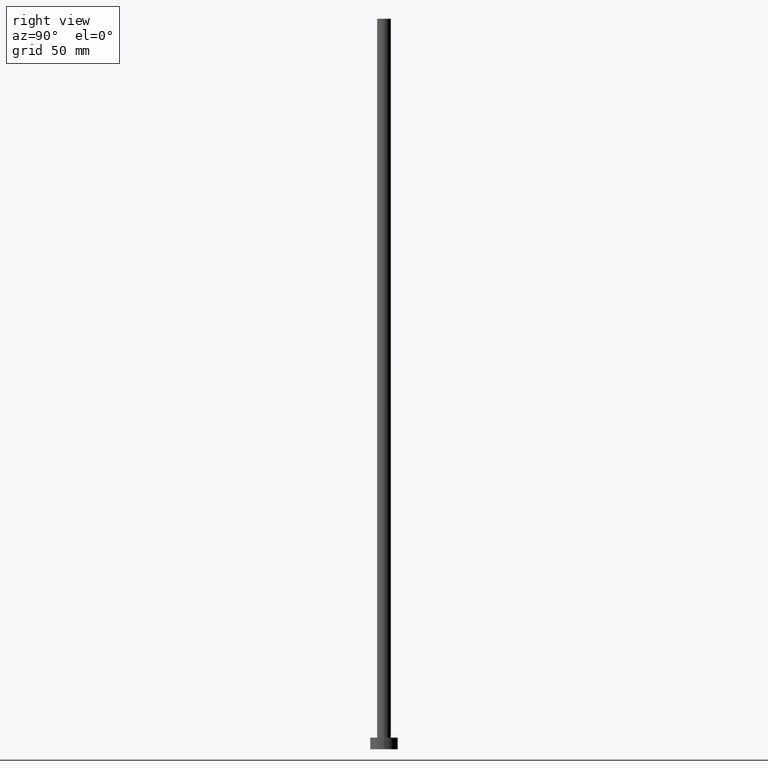
[diagram: clean part render]
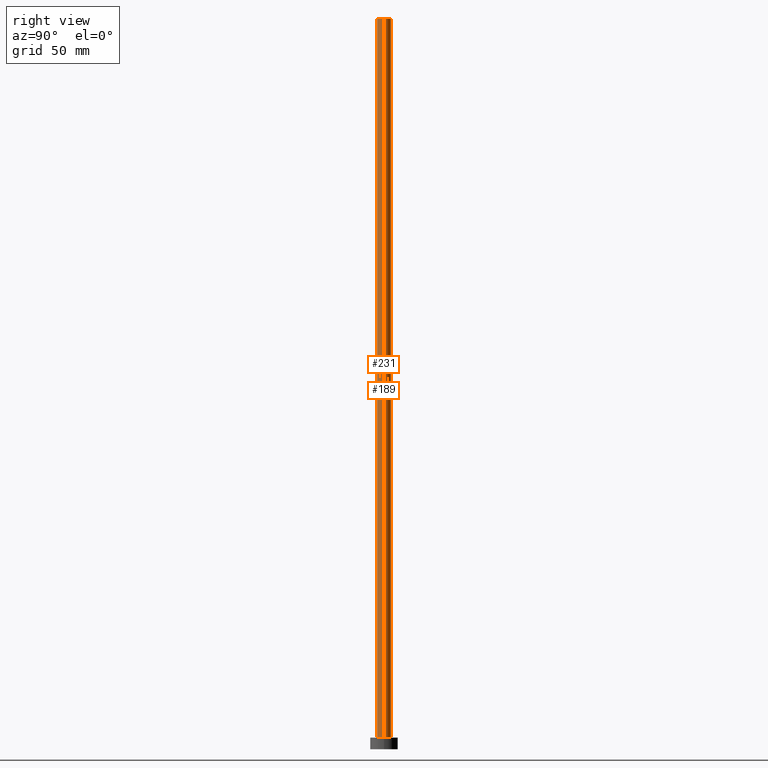
[diagram: same view with one multi-face feature highlighted, each face labeled with its STEP entity id]
A machine part, right view. The highlighted faces form ONE feature: a constant-radius fillet chain: 2 tangent blend faces with common blend radius 3 mm. The faces share edges in the B-rep.
Their STEP definitions:
[1] entity #231 (Cylinder):
#27 = VECTOR ( 'NONE', #178, 1000.000000000000000 ) ;
#28 = EDGE_CURVE ( 'NONE', #84, #98, #78, .T. ) ;
#39 = CARTESIAN_POINT ( 'NONE',  ( 3.000000000000000444, 3.673940397442060361E-16, 5.000000000000000000 ) ) ;
#41 = DIRECTION ( 'NONE',  ( -0.000000000000000000, -0.000000000000000000, -1.000000000000000000 ) ) ;
#44 = FACE_OUTER_BOUND ( 'NONE', #140, .T. ) ;
#47 = DIRECTION ( 'NONE',  ( 1.000000000000000000, 0.000000000000000000, 0.000000000000000000 ) ) ;
#48 = EDGE_CURVE ( 'NONE', #137, #98, #206, .T. ) ;
#56 = LINE ( 'NONE', #62, #27 ) ;
#57 = DIRECTION ( 'NONE',  ( -0.000000000000000000, -0.000000000000000000, -1.000000000000000000 ) ) ;
#62 = CARTESIAN_POINT ( 'NONE',  ( -3.000000000000000444, 0.000000000000000000, 315.0000000000000000 ) ) ;
#63 = ORIENTED_EDGE ( 'NONE', *, *, #69, .T. ) ;
#65 = CARTESIAN_POINT ( 'NONE',  ( 0.000000000000000000, 0.000000000000000000, 315.0000000000000000 ) ) ;
#69 = EDGE_CURVE ( 'NONE', #200, #137, #56, .T. ) ;
#78 = LINE ( 'NONE', #156, #85 ) ;
#84 = VERTEX_POINT ( 'NONE', #136 ) ;
#85 = VECTOR ( 'NONE', #57, 1000.000000000000000 ) ;
#91 = DIRECTION ( 'NONE',  ( 0.000000000000000000, 0.000000000000000000, 1.000000000000000000 ) ) ;
#97 = CARTESIAN_POINT ( 'NONE',  ( -3.000000000000000444, 0.000000000000000000, 5.000000000000000000 ) ) ;
#98 = VERTEX_POINT ( 'NONE', #39 ) ;
#111 = DIRECTION ( 'NONE',  ( 1.000000000000000000, 0.000000000000000000, 0.000000000000000000 ) ) ;
#123 = AXIS2_PLACEMENT_3D ( 'NONE', #65, #41, #205 ) ;
#134 = ORIENTED_EDGE ( 'NONE', *, *, #28, .F. ) ;
#136 = CARTESIAN_POINT ( 'NONE',  ( 3.000000000000000444, 3.673940397442060361E-16, 315.0000000000000000 ) ) ;
#137 = VERTEX_POINT ( 'NONE', #97 ) ;
#140 = EDGE_LOOP ( 'NONE', ( #134, #158, #63, #176 ) ) ;
#146 = CIRCLE ( 'NONE', #203, 3.000000000000000444 ) ;
#148 = CARTESIAN_POINT ( 'NONE',  ( 0.000000000000000000, 0.000000000000000000, 315.0000000000000000 ) ) ;
#156 = CARTESIAN_POINT ( 'NONE',  ( 3.000000000000000444, 3.673940397442060361E-16, 315.0000000000000000 ) ) ;
#158 = ORIENTED_EDGE ( 'NONE', *, *, #239, .F. ) ;
#164 = CARTESIAN_POINT ( 'NONE',  ( 0.000000000000000000, 0.000000000000000000, 5.000000000000000000 ) ) ;
#176 = ORIENTED_EDGE ( 'NONE', *, *, #48, .T. ) ;
#178 = DIRECTION ( 'NONE',  ( -0.000000000000000000, -0.000000000000000000, -1.000000000000000000 ) ) ;
#184 = CYLINDRICAL_SURFACE ( 'NONE', #123, 3.000000000000000444 ) ;
#190 = AXIS2_PLACEMENT_3D ( 'NONE', #164, #91, #111 ) ;
#200 = VERTEX_POINT ( 'NONE', #217 ) ;
#203 = AXIS2_PLACEMENT_3D ( 'NONE', #148, #254, #47 ) ;
#205 = DIRECTION ( 'NONE',  ( -1.000000000000000000, 0.000000000000000000, 0.000000000000000000 ) ) ;
#206 = CIRCLE ( 'NONE', #190, 3.000000000000000444 ) ;
#217 = CARTESIAN_POINT ( 'NONE',  ( -3.000000000000000444, 0.000000000000000000, 315.0000000000000000 ) ) ;
#231 = ADVANCED_FACE ( 'NONE', ( #44 ), #184, .T. ) ;
#239 = EDGE_CURVE ( 'NONE', #200, #84, #146, .T. ) ;
#254 = DIRECTION ( 'NONE',  ( 0.000000000000000000, 0.000000000000000000, 1.000000000000000000 ) ) ;
[2] entity #189 (Cylinder):
#9 = CYLINDRICAL_SURFACE ( 'NONE', #71, 3.000000000000000444 ) ;
#15 = CARTESIAN_POINT ( 'NONE',  ( 0.000000000000000000, 0.000000000000000000, 315.0000000000000000 ) ) ;
#27 = VECTOR ( 'NONE', #178, 1000.000000000000000 ) ;
#28 = EDGE_CURVE ( 'NONE', #84, #98, #78, .T. ) ;
#39 = CARTESIAN_POINT ( 'NONE',  ( 3.000000000000000444, 3.673940397442060361E-16, 5.000000000000000000 ) ) ;
#52 = FACE_OUTER_BOUND ( 'NONE', #234, .T. ) ;
#56 = LINE ( 'NONE', #62, #27 ) ;
#57 = DIRECTION ( 'NONE',  ( -0.000000000000000000, -0.000000000000000000, -1.000000000000000000 ) ) ;
#58 = DIRECTION ( 'NONE',  ( 1.000000000000000000, 0.000000000000000000, 0.000000000000000000 ) ) ;
#62 = CARTESIAN_POINT ( 'NONE',  ( -3.000000000000000444, 0.000000000000000000, 315.0000000000000000 ) ) ;
#64 = ORIENTED_EDGE ( 'NONE', *, *, #161, .F. ) ;
#68 = EDGE_CURVE ( 'NONE', #98, #137, #201, .T. ) ;
#69 = EDGE_CURVE ( 'NONE', #200, #137, #56, .T. ) ;
#71 = AXIS2_PLACEMENT_3D ( 'NONE', #121, #226, #141 ) ;
#75 = CIRCLE ( 'NONE', #83, 3.000000000000000444 ) ;
#78 = LINE ( 'NONE', #156, #85 ) ;
#79 = CARTESIAN_POINT ( 'NONE',  ( 0.000000000000000000, 0.000000000000000000, 5.000000000000000000 ) ) ;
#83 = AXIS2_PLACEMENT_3D ( 'NONE', #15, #103, #182 ) ;
#84 = VERTEX_POINT ( 'NONE', #136 ) ;
#85 = VECTOR ( 'NONE', #57, 1000.000000000000000 ) ;
#97 = CARTESIAN_POINT ( 'NONE',  ( -3.000000000000000444, 0.000000000000000000, 5.000000000000000000 ) ) ;
#98 = VERTEX_POINT ( 'NONE', #39 ) ;
#102 = ORIENTED_EDGE ( 'NONE', *, *, #28, .T. ) ;
#103 = DIRECTION ( 'NONE',  ( 0.000000000000000000, 0.000000000000000000, 1.000000000000000000 ) ) ;
#104 = ORIENTED_EDGE ( 'NONE', *, *, #68, .T. ) ;
#121 = CARTESIAN_POINT ( 'NONE',  ( 0.000000000000000000, 0.000000000000000000, 315.0000000000000000 ) ) ;
#126 = AXIS2_PLACEMENT_3D ( 'NONE', #79, #199, #58 ) ;
#136 = CARTESIAN_POINT ( 'NONE',  ( 3.000000000000000444, 3.673940397442060361E-16, 315.0000000000000000 ) ) ;
#137 = VERTEX_POINT ( 'NONE', #97 ) ;
#141 = DIRECTION ( 'NONE',  ( -1.000000000000000000, 0.000000000000000000, 0.000000000000000000 ) ) ;
#156 = CARTESIAN_POINT ( 'NONE',  ( 3.000000000000000444, 3.673940397442060361E-16, 315.0000000000000000 ) ) ;
#161 = EDGE_CURVE ( 'NONE', #84, #200, #75, .T. ) ;
#178 = DIRECTION ( 'NONE',  ( -0.000000000000000000, -0.000000000000000000, -1.000000000000000000 ) ) ;
#182 = DIRECTION ( 'NONE',  ( 1.000000000000000000, 0.000000000000000000, 0.000000000000000000 ) ) ;
#189 = ADVANCED_FACE ( 'NONE', ( #52 ), #9, .T. ) ;
#199 = DIRECTION ( 'NONE',  ( 0.000000000000000000, 0.000000000000000000, 1.000000000000000000 ) ) ;
#200 = VERTEX_POINT ( 'NONE', #217 ) ;
#201 = CIRCLE ( 'NONE', #126, 3.000000000000000444 ) ;
#217 = CARTESIAN_POINT ( 'NONE',  ( -3.000000000000000444, 0.000000000000000000, 315.0000000000000000 ) ) ;
#226 = DIRECTION ( 'NONE',  ( -0.000000000000000000, -0.000000000000000000, -1.000000000000000000 ) ) ;
#234 = EDGE_LOOP ( 'NONE', ( #64, #102, #104, #246 ) ) ;
#246 = ORIENTED_EDGE ( 'NONE', *, *, #69, .F. ) ;